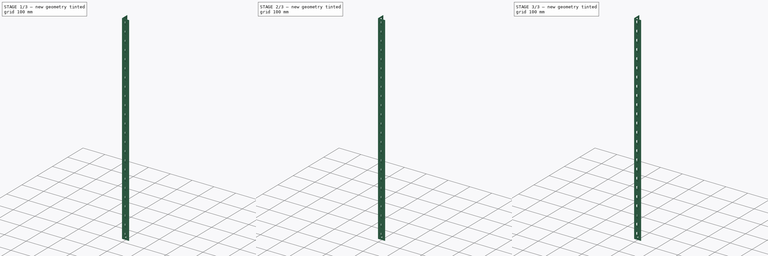
[diagram: build sequence overview — one tinted view per stage of 3, left to right]
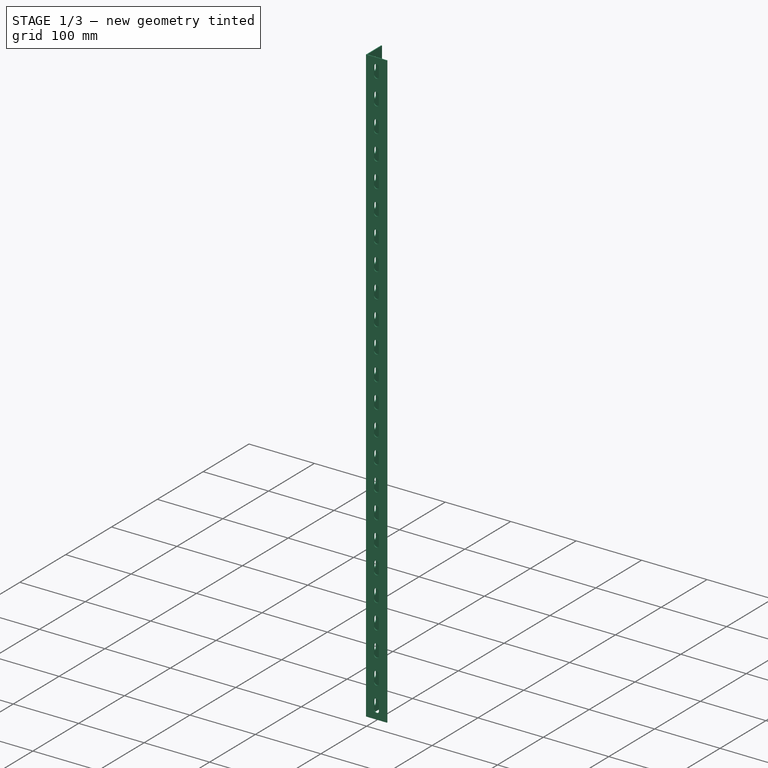
[diagram: stage 1 of 3 — iso view after this stage's code; geometry added in this stage tinted green]
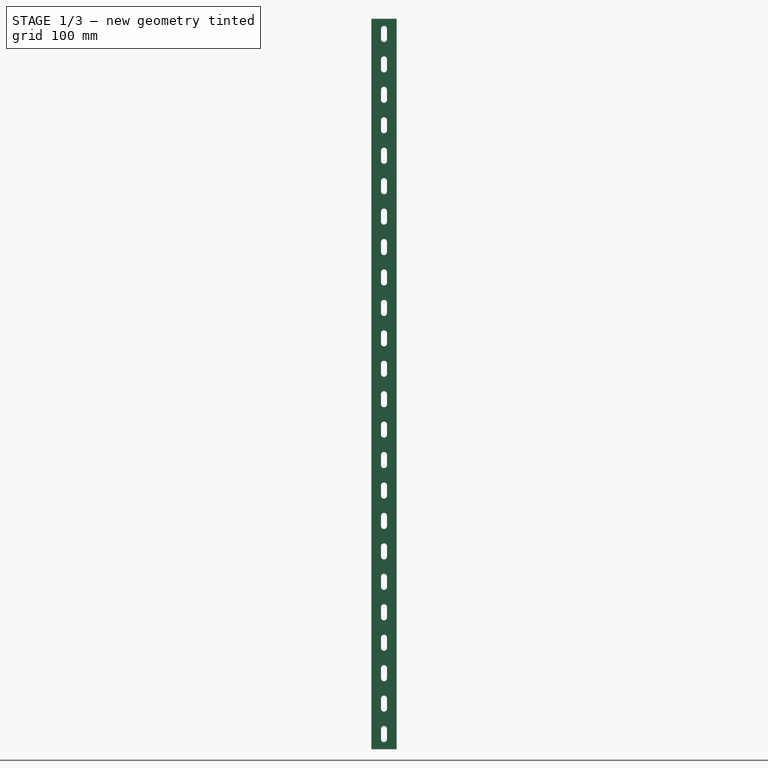
[diagram: stage 1 of 3 — front view after this stage's code; geometry added in this stage tinted green]
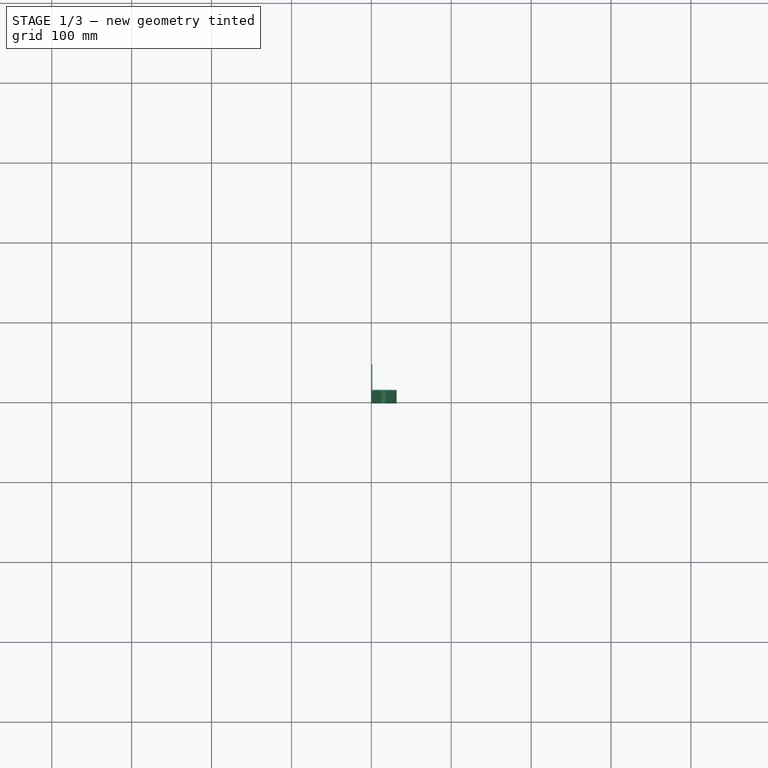
[diagram: stage 1 of 3 — top view after this stage's code; geometry added in this stage tinted green]
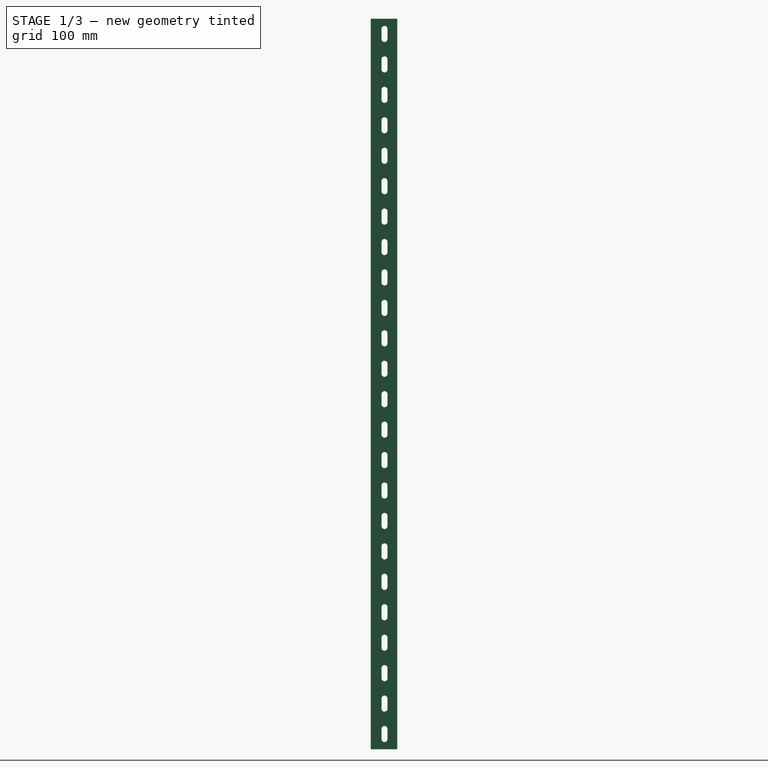
[diagram: stage 1 of 3 — right view after this stage's code; geometry added in this stage tinted green]
FCSTD DOCUMENT  (FreeCAD 0.17R11141 (Git))
Label: upright_support
License: All rights reserved
LicenseURL: http://en.wikipedia.org/wiki/All_rights_reserved
objects: Sketcher::SketchObject×3, PartDesign::Pocket×2, PartDesign::Pad×1, PartDesign::PolarPattern×1, PartDesign::Fillet×1, PartDesign::Body×1
note: 12 computed .brp shape members not serialized (recipe doc carries the construction recipe); baked Part::Feature solids carry a one-line shape summary decoded from their .brp

FEATURE [Sketcher::SketchObject] Sketch
  MapMode = 5
  Placement = pos=(0,0,0) rot=(0.57735,0.57735,0.57735;2.0944rad)
  Support = -> [YZ_Plane]
  sketch-geometry (126):
    g0: LineSegment StartX=0 StartY=0 StartZ=0 EndX=31.75 EndY=0 EndZ=0
    g1: LineSegment StartX=31.75 StartY=0 StartZ=0 EndX=31.75 EndY=914.4 EndZ=0
    g2: LineSegment StartX=31.75 StartY=914.4 StartZ=0 EndX=0 EndY=914.4 EndZ=0
    g3: LineSegment StartX=0 StartY=914.4 StartZ=0 EndX=0 EndY=0 EndZ=0
    g4: LineSegment [constr] StartX=15.875 StartY=0 StartZ=0 EndX=15.875 EndY=12.7 EndZ=0
    g5: LineSegment [constr] StartX=15.875 StartY=12.7 StartZ=0 EndX=15.875 EndY=50.8 EndZ=0
    g6: LineSegment [constr] StartX=15.875 StartY=50.8 StartZ=0 EndX=15.875 EndY=88.9 EndZ=0
    g7: LineSegment [constr] StartX=15.875 StartY=88.9 StartZ=0 EndX=15.875 EndY=127 EndZ=0
    g8: LineSegment [constr] StartX=15.875 StartY=127 StartZ=0 EndX=15.875 EndY=165.1 EndZ=0
    g9: LineSegment [constr] StartX=15.875 StartY=165.1 StartZ=0 EndX=15.875 EndY=203.2 EndZ=0
    g10: LineSegment [constr] StartX=15.875 StartY=203.2 StartZ=0 EndX=15.875 EndY=241.3 EndZ=0
    g11: LineSegment [constr] StartX=15.875 StartY=241.3 StartZ=0 EndX=15.875 EndY=279.4 EndZ=0
    g12: LineSegment [constr] StartX=15.875 StartY=279.4 StartZ=0 EndX=15.875 EndY=317.5 EndZ=0
    g13: LineSegment [constr] StartX=15.875 StartY=317.5 StartZ=0 EndX=15.875 EndY=355.6 EndZ=0
    g14: LineSegment [constr] StartX=15.875 StartY=355.6 StartZ=0 EndX=15.875 EndY=393.7 EndZ=0
    g15: LineSegment [constr] StartX=15.875 StartY=393.7 StartZ=0 EndX=15.875 EndY=431.8 EndZ=0
    g16: LineSegment [constr] StartX=15.875 StartY=431.8 StartZ=0 EndX=15.875 EndY=469.9 EndZ=0
    g17: LineSegment [constr] StartX=15.875 StartY=469.9 StartZ=0 EndX=15.875 EndY=508 EndZ=0
    g18: LineSegment [constr] StartX=15.875 StartY=508 StartZ=0 EndX=15.875 EndY=546.1 EndZ=0
    g19: LineSegment [constr] StartX=15.875 StartY=546.1 StartZ=0 EndX=15.875 EndY=584.2 EndZ=0
    g20: LineSegment [constr] StartX=15.875 StartY=584.2 StartZ=0 EndX=15.875 EndY=622.3 EndZ=0
    g21: LineSegment [constr] StartX=15.875 StartY=622.3 StartZ=0 EndX=15.875 EndY=660.4 EndZ=0
    g22: LineSegment [constr] StartX=15.875 StartY=660.4 StartZ=0 EndX=15.875 EndY=698.5 EndZ=0
    g23: LineSegment [constr] StartX=15.875 StartY=698.5 StartZ=0 EndX=15.875 EndY=736.6 EndZ=0
    g24: LineSegment [constr] StartX=15.875 StartY=736.6 StartZ=0 EndX=15.875 EndY=774.7 EndZ=0
    g25: LineSegment [constr] StartX=15.875 StartY=774.7 StartZ=0 EndX=15.875 EndY=812.8 EndZ=0
    g26: LineSegment [constr] StartX=15.875 StartY=812.8 StartZ=0 EndX=15.875 EndY=850.9 EndZ=0
    g27: LineSegment [constr] StartX=15.875 StartY=850.9 StartZ=0 EndX=15.875 EndY=889 EndZ=0
    g28: LineSegment [constr] StartX=0 StartY=0 StartZ=0 EndX=15.875 EndY=12.7 EndZ=0
    g29: LineSegment [constr] StartX=31.75 StartY=0 StartZ=0 EndX=15.875 EndY=12.7 EndZ=0
    g30: ArcOfCircle CenterX=15.875 CenterY=889 CenterZ=0 NormalX=0 NormalY=0 NormalZ=1 Radius=3.75 StartAngle=3.14159 EndAngle=6.28319
    g31: ArcOfCircle CenterX=15.875 CenterY=901.7 CenterZ=0 NormalX=0 NormalY=0 NormalZ=1 Radius=3.75 StartAngle=0 EndAngle=3.14159
    g32: LineSegment StartX=19.625 StartY=889 StartZ=0 EndX=19.625 EndY=901.7 EndZ=0
    g33: LineSegment StartX=12.125 StartY=889 StartZ=0 EndX=12.125 EndY=901.7 EndZ=0
    g34: ArcOfCircle CenterX=15.875 CenterY=850.9 CenterZ=0 NormalX=0 NormalY=0 NormalZ=1 Radius=3.75 StartAngle=3.14159 EndAngle=6.28319
    g35: ArcOfCircle CenterX=15.875 CenterY=863.6 CenterZ=0 NormalX=0 NormalY=0 NormalZ=1 Radius=3.75 StartAngle=0 EndAngle=3.14159
    g36: LineSegment StartX=19.625 StartY=850.9 StartZ=0 EndX=19.625 EndY=863.6 EndZ=0
    g37: LineSegment StartX=12.125 StartY=850.9 StartZ=0 EndX=12.125 EndY=863.6 EndZ=0
    g38: ArcOfCircle CenterX=15.875 CenterY=812.8 CenterZ=0 NormalX=0 NormalY=0 NormalZ=1 Radius=3.75 StartAngle=3.14159 EndAngle=6.28319
    g39: ArcOfCircle CenterX=15.875 CenterY=825.5 CenterZ=0 NormalX=0 NormalY=0 NormalZ=1 Radius=3.75 StartAngle=0 EndAngle=3.14159
    g40: LineSegment StartX=19.625 StartY=812.8 StartZ=0 EndX=19.625 EndY=825.5 EndZ=0
    g41: LineSegment StartX=12.125 StartY=812.8 StartZ=0 EndX=12.125 EndY=825.5 EndZ=0
    g42: ArcOfCircle CenterX=15.875 CenterY=774.7 CenterZ=0 NormalX=0 NormalY=0 NormalZ=1 Radius=3.75 StartAngle=3.14159 EndAngle=6.28319
    g43: ArcOfCircle CenterX=15.875 CenterY=787.4 CenterZ=0 NormalX=0 NormalY=0 NormalZ=1 Radius=3.75 StartAngle=0 EndAngle=3.14159
    g44: LineSegment StartX=19.625 StartY=774.7 StartZ=0 EndX=19.625 EndY=787.4 EndZ=0
    g45: LineSegment StartX=12.125 StartY=774.7 StartZ=0 EndX=12.125 EndY=787.4 EndZ=0
    g46: ArcOfCircle CenterX=15.875 CenterY=736.6 CenterZ=0 NormalX=0 NormalY=0 NormalZ=1 Radius=3.75 StartAngle=3.14159 EndAngle=6.28319
    g47: ArcOfCircle CenterX=15.875 CenterY=749.3 CenterZ=0 NormalX=0 NormalY=0 NormalZ=1 Radius=3.75 StartAngle=0 EndAngle=3.14159
    g48: LineSegment StartX=19.625 StartY=736.6 StartZ=0 EndX=19.625 EndY=749.3 EndZ=0
    g49: LineSegment StartX=12.125 StartY=736.6 StartZ=0 EndX=12.125 EndY=749.3 EndZ=0
    g50: ArcOfCircle CenterX=15.875 CenterY=698.5 CenterZ=0 NormalX=0 NormalY=0 NormalZ=1 Radius=3.75 StartAngle=3.14159 EndAngle=6.28319
    g51: ArcOfCircle CenterX=15.875 CenterY=711.2 CenterZ=0 NormalX=0 NormalY=0 NormalZ=1 Radius=3.75 StartAngle=0 EndAngle=3.14159
    g52: LineSegment StartX=19.625 StartY=698.5 StartZ=0 EndX=19.625 EndY=711.2 EndZ=0
    g53: LineSegment StartX=12.125 StartY=698.5 StartZ=0 EndX=12.125 EndY=711.2 EndZ=0
    g54: ArcOfCircle CenterX=15.875 CenterY=660.4 CenterZ=0 NormalX=0 NormalY=0 NormalZ=1 Radius=3.75 StartAngle=3.14159 EndAngle=6.28319
    g55: ArcOfCircle CenterX=15.875 CenterY=673.1 CenterZ=0 NormalX=0 NormalY=0 NormalZ=1 Radius=3.75 StartAngle=0 EndAngle=3.14159
    g56: LineSegment StartX=19.625 StartY=660.4 StartZ=0 EndX=19.625 EndY=673.1 EndZ=0
    g57: LineSegment StartX=12.125 StartY=660.4 StartZ=0 EndX=12.125 EndY=673.1 EndZ=0
    g58: ArcOfCircle CenterX=15.875 CenterY=622.3 CenterZ=0 NormalX=0 NormalY=0 NormalZ=1 Radius=3.75 StartAngle=3.14159 EndAngle=6.28319
    g59: ArcOfCircle CenterX=15.875 CenterY=635 CenterZ=0 NormalX=0 NormalY=0 NormalZ=1 Radius=3.75 StartAngle=0 EndAngle=3.14159
    g60: LineSegment StartX=19.625 StartY=622.3 StartZ=0 EndX=19.625 EndY=635 EndZ=0
    g61: LineSegment StartX=12.125 StartY=622.3 StartZ=0 EndX=12.125 EndY=635 EndZ=0
    g62: ArcOfCircle CenterX=15.875 CenterY=584.2 CenterZ=0 NormalX=0 NormalY=0 NormalZ=1 Radius=3.75 StartAngle=3.14159 EndAngle=6.28319
    g63: ArcOfCircle CenterX=15.875 CenterY=596.9 CenterZ=0 NormalX=0 NormalY=0 NormalZ=1 Radius=3.75 StartAngle=0 EndAngle=3.14159
    g64: LineSegment StartX=19.625 StartY=584.2 StartZ=0 EndX=19.625 EndY=596.9 EndZ=0
    g65: LineSegment StartX=12.125 StartY=584.2 StartZ=0 EndX=12.125 EndY=596.9 EndZ=0
    g66: ArcOfCircle CenterX=15.875 CenterY=546.1 CenterZ=0 NormalX=0 NormalY=0 NormalZ=1 Radius=3.75 StartAngle=3.14159 EndAngle=6.28319
    g67: ArcOfCircle CenterX=15.875 CenterY=558.8 CenterZ=0 NormalX=0 NormalY=0 NormalZ=1 Radius=3.75 StartAngle=0 EndAngle=3.14159
    g68: LineSegment StartX=19.625 StartY=546.1 StartZ=0 EndX=19.625 EndY=558.8 EndZ=0
    g69: LineSegment StartX=12.125 StartY=546.1 StartZ=0 EndX=12.125 EndY=558.8 EndZ=0
    g70: ArcOfCircle CenterX=15.875 CenterY=508 CenterZ=0 NormalX=0 NormalY=0 NormalZ=1 Radius=3.75 StartAngle=3.14159 EndAngle=6.28319
    g71: ArcOfCircle CenterX=15.875 CenterY=520.7 CenterZ=0 NormalX=0 NormalY=0 NormalZ=1 Radius=3.75 StartAngle=0 EndAngle=3.14159
    g72: LineSegment StartX=19.625 StartY=508 StartZ=0 EndX=19.625 EndY=520.7 EndZ=0
    g73: LineSegment StartX=12.125 StartY=508 StartZ=0 EndX=12.125 EndY=520.7 EndZ=0
    g74: ArcOfCircle CenterX=15.875 CenterY=469.9 CenterZ=0 NormalX=0 NormalY=0 NormalZ=1 Radius=3.75 StartAngle=3.14159 EndAngle=6.28319
    g75: ArcOfCircle CenterX=15.875 CenterY=482.6 CenterZ=0 NormalX=0 NormalY=0 NormalZ=1 Radius=3.75 StartAngle=0 EndAngle=3.14159
    g76: LineSegment StartX=19.625 StartY=469.9 StartZ=0 EndX=19.625 EndY=482.6 EndZ=0
    g77: LineSegment StartX=12.125 StartY=469.9 StartZ=0 EndX=12.125 EndY=482.6 EndZ=0
    g78: ArcOfCircle CenterX=15.875 CenterY=431.8 CenterZ=0 NormalX=0 NormalY=0 NormalZ=1 Radius=3.75 StartAngle=3.14159 EndAngle=6.28319
    g79: ArcOfCircle CenterX=15.875 CenterY=444.5 CenterZ=0 NormalX=0 NormalY=0 NormalZ=1 Radius=3.75 StartAngle=0 EndAngle=3.14159
    g80: LineSegment StartX=19.625 StartY=431.8 StartZ=0 EndX=19.625 EndY=444.5 EndZ=0
    g81: LineSegment StartX=12.125 StartY=431.8 StartZ=0 EndX=12.125 EndY=444.5 EndZ=0
    g82: ArcOfCircle CenterX=15.875 CenterY=393.7 CenterZ=0 NormalX=0 NormalY=0 NormalZ=1 Radius=3.75 StartAngle=3.14159 EndAngle=6.28319
    g83: ArcOfCircle CenterX=15.875 CenterY=406.4 CenterZ=0 NormalX=0 NormalY=0 NormalZ=1 Radius=3.75 StartAngle=0 EndAngle=3.14159
    g84: LineSegment StartX=19.625 StartY=393.7 StartZ=0 EndX=19.625 EndY=406.4 EndZ=0
    g85: LineSegment StartX=12.125 StartY=393.7 StartZ=0 EndX=12.125 EndY=406.4 EndZ=0
    g86: ArcOfCircle CenterX=15.875 CenterY=355.6 CenterZ=0 NormalX=0 NormalY=0 NormalZ=1 Radius=3.75 StartAngle=3.14159 EndAngle=6.28319
    g87: ArcOfCircle CenterX=15.875 CenterY=368.3 CenterZ=0 NormalX=0 NormalY=0 NormalZ=1 Radius=3.75 StartAngle=0 EndAngle=3.14159
    g88: LineSegment StartX=19.625 StartY=355.6 StartZ=0 EndX=19.625 EndY=368.3 EndZ=0
    g89: LineSegment StartX=12.125 StartY=355.6 StartZ=0 EndX=12.125 EndY=368.3 EndZ=0
    g90: ArcOfCircle CenterX=15.875 CenterY=317.5 CenterZ=0 NormalX=0 NormalY=0 NormalZ=1 Radius=3.75 StartAngle=3.14159 EndAngle=6.28319
    g91: ArcOfCircle CenterX=15.875 CenterY=330.2 CenterZ=0 NormalX=0 NormalY=0 NormalZ=1 Radius=3.75 StartAngle=0 EndAngle=3.14159
    g92: LineSegment StartX=19.625 StartY=317.5 StartZ=0 EndX=19.625 EndY=330.2 EndZ=0
    g93: LineSegment StartX=12.125 StartY=317.5 StartZ=0 EndX=12.125 EndY=330.2 EndZ=0
    g94: ArcOfCircle CenterX=15.875 CenterY=279.4 CenterZ=0 NormalX=0 NormalY=0 NormalZ=1 Radius=3.75 StartAngle=3.14159 EndAngle=6.28319
    g95: ArcOfCircle CenterX=15.875 CenterY=292.1 CenterZ=0 NormalX=0 NormalY=0 NormalZ=1 Radius=3.75 StartAngle=0 EndAngle=3.14159
    g96: LineSegment StartX=19.625 StartY=279.4 StartZ=0 EndX=19.625 EndY=292.1 EndZ=0
    g97: LineSegment StartX=12.125 StartY=279.4 StartZ=0 EndX=12.125 EndY=292.1 EndZ=0
    g98: ArcOfCircle CenterX=15.875 CenterY=241.3 CenterZ=0 NormalX=0 NormalY=0 NormalZ=1 Radius=3.75 StartAngle=3.14159 EndAngle=6.28319
    g99: ArcOfCircle CenterX=15.875 CenterY=254 CenterZ=0 NormalX=0 NormalY=0 NormalZ=1 Radius=3.75 StartAngle=0 EndAngle=3.14159
    g100: LineSegment StartX=19.625 StartY=241.3 StartZ=0 EndX=19.625 EndY=254 EndZ=0
    g101: LineSegment StartX=12.125 StartY=241.3 StartZ=0 EndX=12.125 EndY=254 EndZ=0
    g102: ArcOfCircle CenterX=15.875 CenterY=203.2 CenterZ=0 NormalX=0 NormalY=0 NormalZ=1 Radius=3.75 StartAngle=3.14159 EndAngle=6.28319
    g103: ArcOfCircle CenterX=15.875 CenterY=215.9 CenterZ=0 NormalX=0 NormalY=0 NormalZ=1 Radius=3.75 StartAngle=0 EndAngle=3.14159
    g104: LineSegment StartX=19.625 StartY=203.2 StartZ=0 EndX=19.625 EndY=215.9 EndZ=0
    g105: LineSegment StartX=12.125 StartY=203.2 StartZ=0 EndX=12.125 EndY=215.9 EndZ=0
    g106: ArcOfCircle CenterX=15.875 CenterY=165.1 CenterZ=0 NormalX=0 NormalY=0 NormalZ=1 Radius=3.75 StartAngle=3.14159 EndAngle=6.28319
    g107: ArcOfCircle CenterX=15.875 CenterY=177.8 CenterZ=0 NormalX=0 NormalY=0 NormalZ=1 Radius=3.75 StartAngle=0 EndAngle=3.14159
    g108: LineSegment StartX=19.625 StartY=165.1 StartZ=0 EndX=19.625 EndY=177.8 EndZ=0
    g109: LineSegment StartX=12.125 StartY=165.1 StartZ=0 EndX=12.125 EndY=177.8 EndZ=0
    g110: ArcOfCircle CenterX=15.875 CenterY=127 CenterZ=0 NormalX=0 NormalY=0 NormalZ=1 Radius=3.75 StartAngle=3.14159 EndAngle=6.28319
    g111: ArcOfCircle CenterX=15.875 CenterY=139.7 CenterZ=0 NormalX=0 NormalY=0 NormalZ=1 Radius=3.75 StartAngle=0 EndAngle=3.14159
    g112: LineSegment StartX=19.625 StartY=127 StartZ=0 EndX=19.625 EndY=139.7 EndZ=0
    g113: LineSegment StartX=12.125 StartY=127 StartZ=0 EndX=12.125 EndY=139.7 EndZ=0
    g114: ArcOfCircle CenterX=15.875 CenterY=88.9 CenterZ=0 NormalX=0 NormalY=0 NormalZ=1 Radius=3.75 StartAngle=3.14159 EndAngle=6.28319
    g115: ArcOfCircle CenterX=15.875 CenterY=101.6 CenterZ=0 NormalX=0 NormalY=0 NormalZ=1 Radius=3.75 StartAngle=0 EndAngle=3.14159
    g116: LineSegment StartX=19.625 StartY=88.9 StartZ=0 EndX=19.625 EndY=101.6 EndZ=0
    g117: LineSegment StartX=12.125 StartY=88.9 StartZ=0 EndX=12.125 EndY=101.6 EndZ=0
    g118: ArcOfCircle CenterX=15.875 CenterY=50.8 CenterZ=0 NormalX=0 NormalY=0 NormalZ=1 Radius=3.75 StartAngle=3.14159 EndAngle=6.28319
    g119: ArcOfCircle CenterX=15.875 CenterY=63.5 CenterZ=0 NormalX=0 NormalY=0 NormalZ=1 Radius=3.75 StartAngle=0 EndAngle=3.14159
    g120: LineSegment StartX=19.625 StartY=50.8 StartZ=0 EndX=19.625 EndY=63.5 EndZ=0
    g121: LineSegment StartX=12.125 StartY=50.8 StartZ=0 EndX=12.125 EndY=63.5 EndZ=0
    g122: ArcOfCircle CenterX=15.875 CenterY=12.7 CenterZ=0 NormalX=0 NormalY=0 NormalZ=1 Radius=3.75 StartAngle=3.14159 EndAngle=6.28319
    g123: ArcOfCircle CenterX=15.875 CenterY=25.4 CenterZ=0 NormalX=0 NormalY=0 NormalZ=1 Radius=3.75 StartAngle=0 EndAngle=3.14159
    g124: LineSegment StartX=19.625 StartY=12.7 StartZ=0 EndX=19.625 EndY=25.4 EndZ=0
    g125: LineSegment StartX=12.125 StartY=12.7 StartZ=0 EndX=12.125 EndY=25.4 EndZ=0
  constraints (304):
    c: Coincident(g0,g1)
    c: Coincident(g1,g2)
    c: Coincident(g2,g3)
    c: Coincident(g3,g0)
    c: Horizontal(g0)
    c: Horizontal(g2)
    c: Vertical(g1)
    c: Vertical(g3)
    c: Coincident(g0,g-1)
    c: DistanceY(g3,g3) = 914.4
    c: DistanceX(g0,g0) = 31.75
    c: PointOnObject(g4,g0)
    c: Vertical(g4)
    c: Coincident(g4,g5)
    c: Vertical(g5)
    c: Coincident(g5,g6)
    c: Vertical(g6)
    c: Coincident(g6,g7)
    c: Vertical(g7)
    c: Coincident(g7,g8)
    c: Vertical(g8)
    c: Coincident(g8,g9)
    c: Vertical(g9)
    c: Coincident(g9,g10)
    c: Vertical(g10)
    c: Coincident(g10,g11)
    c: Vertical(g11)
    c: Coincident(g11,g12)
    c: Vertical(g12)
    c: Coincident(g12,g13)
    c: Vertical(g13)
    c: Coincident(g13,g14)
    c: Vertical(g14)
    c: Coincident(g14,g15)
    c: Vertical(g15)
    c: Coincident(g15,g16)
    c: Vertical(g16)
    c: Coincident(g16,g17)
    c: Vertical(g17)
    c: Coincident(g17,g18)
    c: Vertical(g18)
    c: Coincident(g18,g19)
    c: Vertical(g19)
    c: Coincident(g19,g20)
    c: Vertical(g20)
    c: Coincident(g20,g21)
    c: Vertical(g21)
    c: Coincident(g21,g22)
    c: Vertical(g22)
    c: Equal(g5,g6)
    c: Equal(g6,g7)
    c: Equal(g7,g8)
    c: Equal(g8,g9)
    c: Equal(g9,g10)
    c: Equal(g10,g11)
    c: Equal(g11,g12)
    c: Equal(g12,g13)
    c: Equal(g13,g14)
    c: Equal(g14,g15)
    c: Equal(g15,g16)
    c: Equal(g16,g17)
    c: Equal(g17,g18)
    c: Equal(g18,g19)
    c: Equal(g19,g20)
    c: Equal(g20,g21)
    c: Equal(g21,g22)
    c: DistanceY(g22,g22) = 38.1
    c: Coincident(g22,g23)
    c: Vertical(g23)
    c: Coincident(g23,g24)
    c: Vertical(g24)
    c: Coincident(g24,g25)
    c: Vertical(g25)
    c: Coincident(g25,g26)
    c: Vertical(g26)
    c: Coincident(g26,g27)
    c: Vertical(g27)
    c: Equal(g22,g23)
    c: Equal(g23,g24)
    c: Equal(g24,g25)
    c: Equal(g25,g26)
    c: Equal(g26,g27)
    c: DistanceY(g27,g2) = 25.4
    c: Coincident(g28,g-1)
    c: Coincident(g28,g4)
    c: Coincident(g29,g0)
    c: Coincident(g29,g4)
    c: Equal(g28,g29)
    c: Tangent(g30,g33) = 1.5708
    c: Tangent(g30,g32) = -1.5708
    c: Tangent(g32,g31) = -1.5708
    c: Tangent(g33,g31) = 1.5708
    c: Vertical(g32)
    c: Equal(g30,g31)
    c: Coincident(g30,g27)
    c: Tangent(g34,g37) = 1.5708
    c: Tangent(g34,g36) = -1.5708
    c: Tangent(g36,g35) = -1.5708
    c: Tangent(g37,g35) = 1.5708
    c: Vertical(g36)
    c: Equal(g34,g35)
    c: Coincident(g34,g26)
    c: Tangent(g38,g41) = 1.5708
    c: Tangent(g38,g40) = -1.5708
    c: Tangent(g40,g39) = -1.5708
    c: Tangent(g41,g39) = 1.5708
    c: Vertical(g40)
    c: Equal(g38,g39)
    c: Coincident(g38,g25)
    c: Tangent(g42,g45) = 1.5708
    c: Tangent(g42,g44) = -1.5708
    c: Tangent(g44,g43) = -1.5708
    c: Tangent(g45,g43) = 1.5708
    c: Vertical(g44)
    c: Equal(g42,g43)
    c: Coincident(g42,g24)
    c: Tangent(g46,g49) = 1.5708
    c: Tangent(g46,g48) = -1.5708
    c: Tangent(g48,g47) = -1.5708
    c: Tangent(g49,g47) = 1.5708
    c: Vertical(g48)
    c: Equal(g46,g47)
    c: Coincident(g46,g23)
    c: Tangent(g50,g53) = 1.5708
    c: Tangent(g50,g52) = -1.5708
    c: Tangent(g52,g51) = -1.5708
    c: Tangent(g53,g51) = 1.5708
    c: Vertical(g52)
    c: Equal(g50,g51)
    c: Coincident(g50,g22)
    c: Tangent(g54,g57) = 1.5708
    c: Tangent(g54,g56) = -1.5708
    c: Tangent(g56,g55) = -1.5708
    c: Tangent(g57,g55) = 1.5708
    c: Vertical(g56)
    c: Equal(g54,g55)
    c: Coincident(g54,g21)
    c: Tangent(g58,g61) = 1.5708
    c: Tangent(g58,g60) = -1.5708
    c: Tangent(g60,g59) = -1.5708
    c: Tangent(g61,g59) = 1.5708
    c: Vertical(g60)
    c: Equal(g58,g59)
    c: Coincident(g58,g20)
    c: Tangent(g62,g65) = 1.5708
    c: Tangent(g62,g64) = -1.5708
    c: Tangent(g64,g63) = -1.5708
    c: Tangent(g65,g63) = 1.5708
    c: Vertical(g64)
    c: Equal(g62,g63)
    c: Coincident(g62,g19)
    c: Tangent(g66,g69) = 1.5708
    c: Tangent(g66,g68) = -1.5708
    c: Tangent(g68,g67) = -1.5708
    c: Tangent(g69,g67) = 1.5708
    c: Vertical(g68)
    c: Equal(g66,g67)
    c: Coincident(g66,g18)
    c: Tangent(g70,g73) = 1.5708
    c: Tangent(g70,g72) = -1.5708
    c: Tangent(g72,g71) = -1.5708
    c: Tangent(g73,g71) = 1.5708
    c: Vertical(g72)
    c: Equal(g70,g71)
    c: Coincident(g70,g17)
    c: Tangent(g74,g77) = 1.5708
    c: Tangent(g74,g76) = -1.5708
    c: Tangent(g76,g75) = -1.5708
    c: Tangent(g77,g75) = 1.5708
    c: Vertical(g76)
    c: Equal(g74,g75)
    c: Coincident(g74,g16)
    c: Tangent(g78,g81) = 1.5708
    c: Tangent(g78,g80) = -1.5708
    c: Tangent(g80,g79) = -1.5708
    c: Tangent(g81,g79) = 1.5708
    c: Vertical(g80)
    c: Equal(g78,g79)
    c: Coincident(g78,g15)
    c: Tangent(g82,g85) = 1.5708
    c: Tangent(g82,g84) = -1.5708
    c: Tangent(g84,g83) = -1.5708
    c: Tangent(g85,g83) = 1.5708
    c: Vertical(g84)
    c: Equal(g82,g83)
    c: Coincident(g82,g14)
    c: Tangent(g86,g89) = 1.5708
    c: Tangent(g86,g88) = -1.5708
    c: Tangent(g88,g87) = -1.5708
    c: Tangent(g89,g87) = 1.5708
    c: Vertical(g88)
    c: Equal(g86,g87)
    c: Coincident(g86,g13)
    c: Tangent(g90,g93) = 1.5708
    c: Tangent(g90,g92) = -1.5708
    c: Tangent(g92,g91) = -1.5708
    c: Tangent(g93,g91) = 1.5708
    c: Vertical(g92)
    c: Equal(g90,g91)
    c: Coincident(g90,g12)
    c: Tangent(g94,g97) = 1.5708
    c: Tangent(g94,g96) = -1.5708
    c: Tangent(g96,g95) = -1.5708
    c: Tangent(g97,g95) = 1.5708
    c: Vertical(g96)
    c: Equal(g94,g95)
    c: Coincident(g94,g11)
    c: Tangent(g98,g101) = 1.5708
    c: Tangent(g98,g100) = -1.5708
    c: Tangent(g100,g99) = -1.5708
    c: Tangent(g101,g99) = 1.5708
    c: Vertical(g100)
    c: Equal(g98,g99)
    c: Coincident(g98,g10)
    c: Tangent(g102,g105) = 1.5708
    c: Tangent(g102,g104) = -1.5708
    c: Tangent(g104,g103) = -1.5708
    c: Tangent(g105,g103) = 1.5708
    c: Vertical(g104)
    c: Equal(g102,g103)
    c: Coincident(g102,g9)
    c: Tangent(g106,g109) = 1.5708
    c: Tangent(g106,g108) = -1.5708
    c: Tangent(g108,g107) = -1.5708
    c: Tangent(g109,g107) = 1.5708
    c: Vertical(g108)
    c: Equal(g106,g107)
    c: Coincident(g106,g8)
    c: Tangent(g110,g113) = 1.5708
    c: Tangent(g110,g112) = -1.5708
    c: Tangent(g112,g111) = -1.5708
    c: Tangent(g113,g111) = 1.5708
    c: Vertical(g112)
    c: Equal(g110,g111)
    c: Coincident(g110,g7)
    c: Tangent(g114,g117) = 1.5708
    c: Tangent(g114,g116) = -1.5708
    c: Tangent(g116,g115) = -1.5708
    c: Tangent(g117,g115) = 1.5708
    c: Vertical(g116)
    c: Equal(g114,g115)
    c: Coincident(g114,g6)
    c: Tangent(g118,g121) = 1.5708
    c: Tangent(g118,g120) = -1.5708
    c: Tangent(g120,g119) = -1.5708
    c: Tangent(g121,g119) = 1.5708
    c: Vertical(g120)
    c: Equal(g118,g119)
    c: Coincident(g118,g5)
    c: Tangent(g122,g125) = 1.5708
    c: Tangent(g122,g124) = -1.5708
    c: Tangent(g124,g123) = -1.5708
    c: Tangent(g125,g123) = 1.5708
    c: Vertical(g124)
    c: Equal(g122,g123)
    c: Coincident(g122,g4)
    c: Equal(g30,g34)
    c: Equal(g34,g38)
    c: Equal(g38,g42)
    c: Equal(g42,g46)
    c: Equal(g46,g50)
    c: Equal(g50,g54)
    c: Equal(g54,g58)
    c: Equal(g58,g62)
    c: Equal(g62,g66)
    c: Equal(g66,g70)
    c: Equal(g70,g74)
    c: Equal(g74,g78)
    c: Equal(g78,g82)
    c: Equal(g82,g86)
    c: Equal(g86,g90)
    c: Equal(g90,g94)
    c: Equal(g94,g98)
    c: Equal(g98,g102)
    c: Equal(g102,g106)
    c: Equal(g106,g110)
    c: Equal(g110,g114)
    c: Equal(g114,g118)
    c: Equal(g118,g122)
    c: Radius(g122) = 3.75
    c: Equal(g124,g120)
    c: Equal(g120,g116)
    c: Equal(g116,g112)
    c: Equal(g112,g108)
    c: Equal(g108,g104)
    c: Equal(g104,g100)
    c: Equal(g100,g96)
    c: Equal(g96,g92)
    c: Equal(g92,g88)
    c: Equal(g88,g84)
    c: Equal(g84,g80)
    c: Equal(g80,g76)
    c: Equal(g76,g72)
    c: Equal(g72,g68)
    c: Equal(g68,g64)
    c: Equal(g64,g60)
    c: Equal(g60,g56)
    c: Equal(g56,g52)
    c: Equal(g52,g48)
    c: Equal(g48,g44)
    c: Equal(g44,g40)
    c: Equal(g40,g36)
    c: Equal(g36,g32)
    c: DistanceY(g32,g32) = 12.7
FEATURE [PartDesign::Pad] Pad
  Length = 1.27
  Length2 = 100
  Placement = pos=(0,0,0) rot=(0.57735,0.57735,0.57735;2.0944rad)
  Profile = -> Sketch
  Type = 0
FEATURE [PartDesign::PolarPattern] PolarPattern
  Angle = 89.99
  Axis = -> Z_Axis
  BaseFeature = -> Pad
  Occurrences = 2
  Originals = -> [Pad]
  Placement = pos=(0,0,0) rot=(0.57735,0.57735,0.57735;2.0944rad)
  Reversed = true
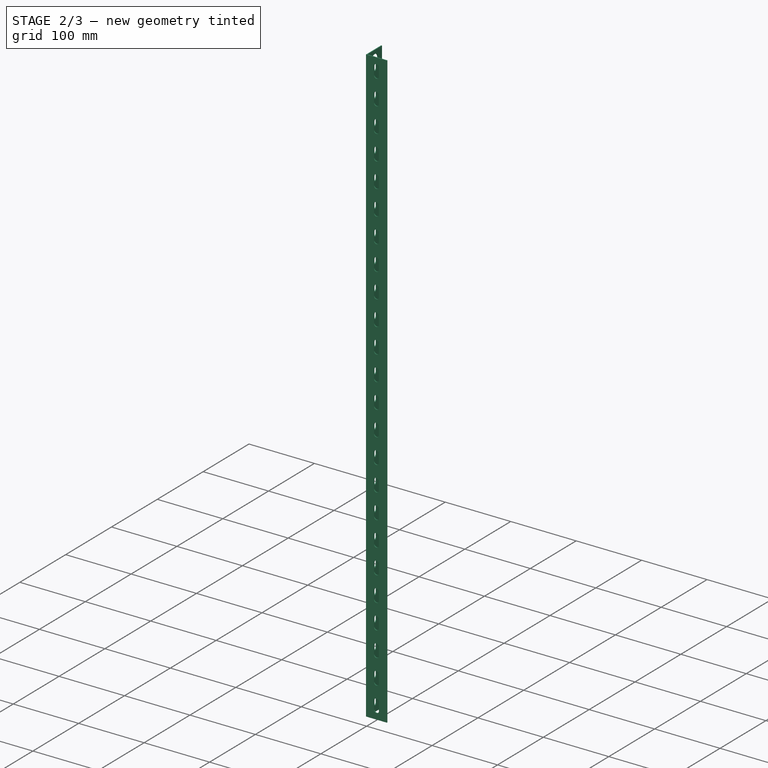
[diagram: stage 2 of 3 — iso view after this stage's code; geometry added in this stage tinted green]
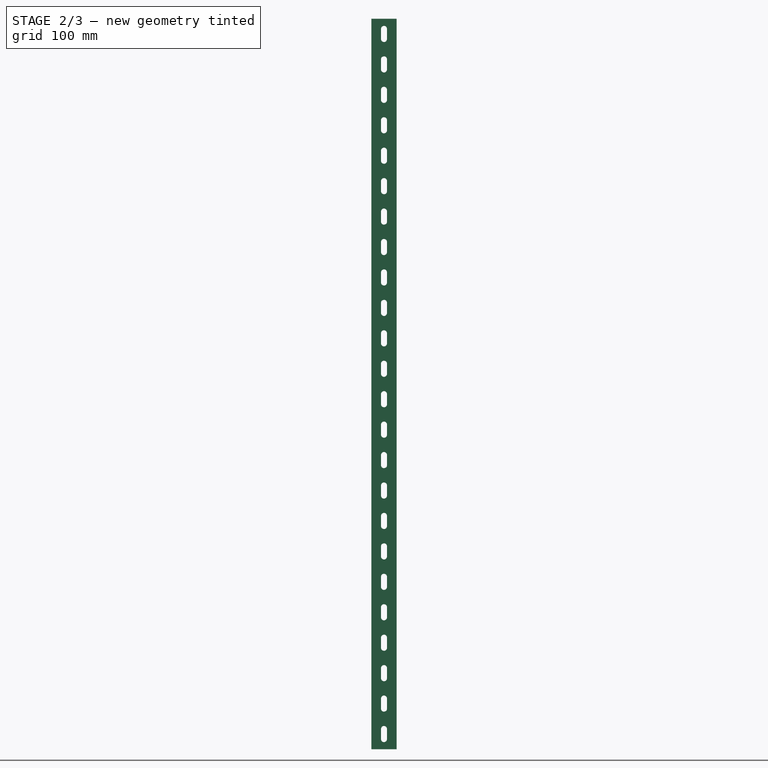
[diagram: stage 2 of 3 — front view after this stage's code; geometry added in this stage tinted green]
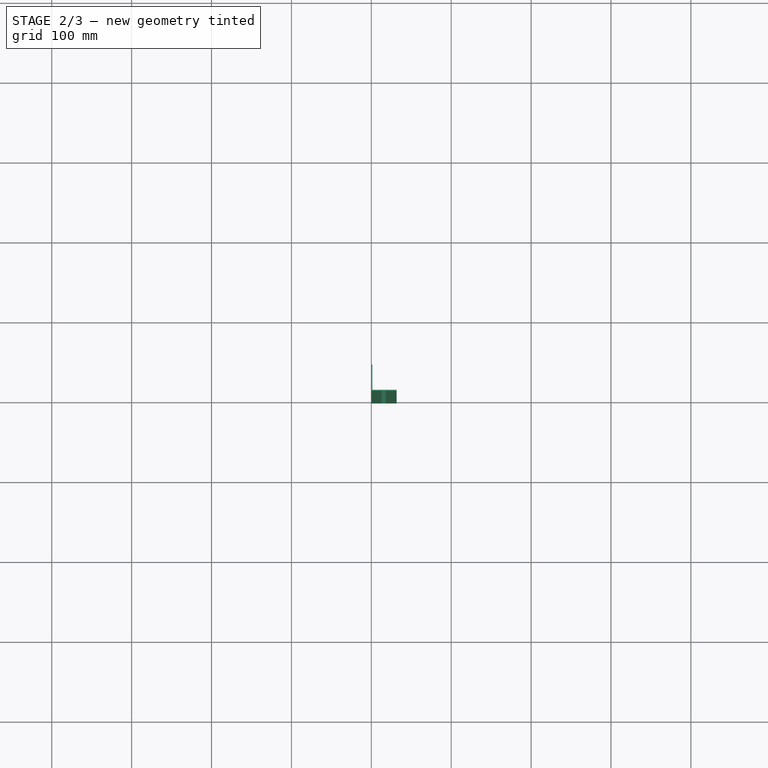
[diagram: stage 2 of 3 — top view after this stage's code; geometry added in this stage tinted green]
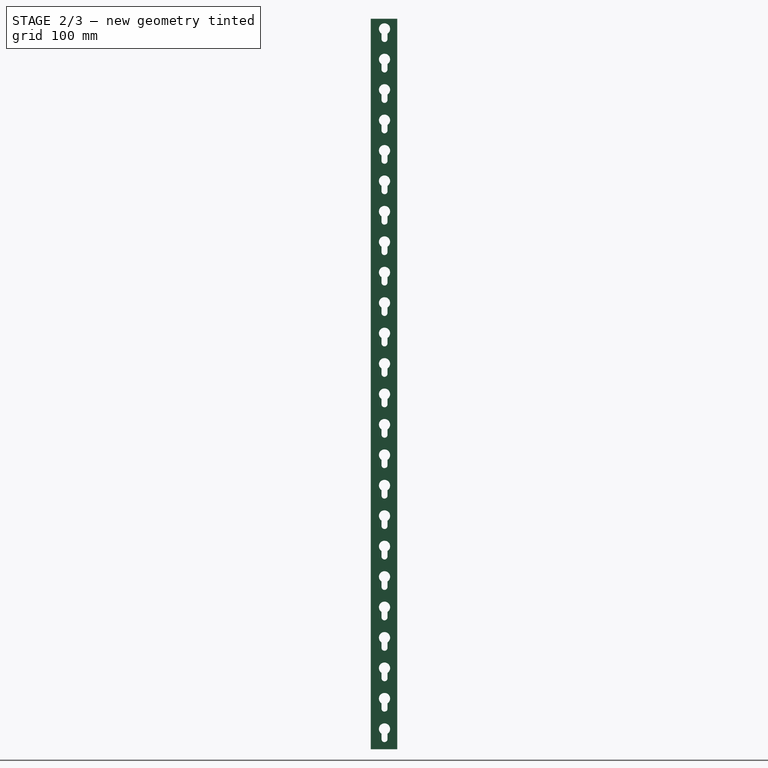
[diagram: stage 2 of 3 — right view after this stage's code; geometry added in this stage tinted green]
FEATURE [Sketcher::SketchObject] Sketch001
  ExternalGeometry = -> [PolarPattern]
  MapMode = 5
  Placement = pos=(0,0,0) rot=(0.57735,0.57735,-0.57735;4.18879rad)
  Support = -> [PolarPattern]
  sketch-geometry (24):
    g0: Circle CenterX=15.875 CenterY=-901.7 CenterZ=0 NormalX=0 NormalY=0 NormalZ=1 Radius=7
    g1: Circle CenterX=15.875 CenterY=-863.6 CenterZ=0 NormalX=0 NormalY=0 NormalZ=1 Radius=7
    g2: Circle CenterX=15.875 CenterY=-825.5 CenterZ=0 NormalX=0 NormalY=0 NormalZ=1 Radius=7
    g3: Circle CenterX=15.875 CenterY=-787.4 CenterZ=0 NormalX=0 NormalY=0 NormalZ=1 Radius=7
    g4: Circle CenterX=15.875 CenterY=-749.3 CenterZ=0 NormalX=0 NormalY=0 NormalZ=1 Radius=7
    g5: Circle CenterX=15.875 CenterY=-711.2 CenterZ=0 NormalX=0 NormalY=0 NormalZ=1 Radius=7
    g6: Circle CenterX=15.875 CenterY=-673.1 CenterZ=0 NormalX=0 NormalY=0 NormalZ=1 Radius=7
    g7: Circle CenterX=15.875 CenterY=-635 CenterZ=0 NormalX=0 NormalY=0 NormalZ=1 Radius=7
    g8: Circle CenterX=15.875 CenterY=-596.9 CenterZ=0 NormalX=0 NormalY=0 NormalZ=1 Radius=7
    g9: Circle CenterX=15.875 CenterY=-558.8 CenterZ=0 NormalX=0 NormalY=0 NormalZ=1 Radius=7
    g10: Circle CenterX=15.875 CenterY=-520.7 CenterZ=0 NormalX=0 NormalY=0 NormalZ=1 Radius=7
    g11: Circle CenterX=15.875 CenterY=-482.6 CenterZ=0 NormalX=0 NormalY=0 NormalZ=1 Radius=7
    g12: Circle CenterX=15.875 CenterY=-444.5 CenterZ=0 NormalX=0 NormalY=0 NormalZ=1 Radius=7
    g13: Circle CenterX=15.875 CenterY=-406.4 CenterZ=0 NormalX=0 NormalY=0 NormalZ=1 Radius=7
    g14: Circle CenterX=15.875 CenterY=-368.3 CenterZ=0 NormalX=0 NormalY=0 NormalZ=1 Radius=7
    g15: Circle CenterX=15.875 CenterY=-330.2 CenterZ=0 NormalX=0 NormalY=0 NormalZ=1 Radius=7
    g16: Circle CenterX=15.875 CenterY=-292.1 CenterZ=0 NormalX=0 NormalY=0 NormalZ=1 Radius=7
    g17: Circle CenterX=15.875 CenterY=-254 CenterZ=0 NormalX=0 NormalY=0 NormalZ=1 Radius=7
    g18: Circle CenterX=15.875 CenterY=-215.9 CenterZ=0 NormalX=0 NormalY=0 NormalZ=1 Radius=7
    g19: Circle CenterX=15.875 CenterY=-177.8 CenterZ=0 NormalX=0 NormalY=0 NormalZ=1 Radius=7
    g20: Circle CenterX=15.875 CenterY=-139.7 CenterZ=0 NormalX=0 NormalY=0 NormalZ=1 Radius=7
    g21: Circle CenterX=15.875 CenterY=-101.6 CenterZ=0 NormalX=0 NormalY=0 NormalZ=1 Radius=7
    g22: Circle CenterX=15.875 CenterY=-63.5 CenterZ=0 NormalX=0 NormalY=0 NormalZ=1 Radius=7
    g23: Circle CenterX=15.875 CenterY=-25.4 CenterZ=0 NormalX=0 NormalY=0 NormalZ=1 Radius=7
  constraints (48):
    c: Coincident(g0,g-26)
    c: Coincident(g1,g-25)
    c: Coincident(g2,g-24)
    c: Coincident(g3,g-23)
    c: Coincident(g4,g-22)
    c: Coincident(g5,g-21)
    c: Coincident(g6,g-20)
    c: Coincident(g7,g-3)
    c: Coincident(g8,g-19)
    c: Coincident(g9,g-18)
    c: Coincident(g10,g-17)
    c: Coincident(g11,g-16)
    c: Coincident(g12,g-15)
    c: Coincident(g13,g-14)
    c: Coincident(g14,g-13)
    c: Coincident(g15,g-12)
    c: Coincident(g16,g-11)
    c: Coincident(g17,g-10)
    c: Coincident(g18,g-9)
    c: Coincident(g19,g-8)
    c: Coincident(g20,g-7)
    c: Coincident(g21,g-6)
    c: Coincident(g22,g-5)
    c: Coincident(g23,g-4)
    c: Equal(g23,g22)
    c: Equal(g22,g21)
    c: Equal(g21,g20)
    c: Equal(g20,g19)
    c: Equal(g19,g18)
    c: Equal(g18,g17)
    c: Equal(g17,g15)
    c: Equal(g15,g16)
    c: Equal(g16,g14)
    c: Equal(g14,g13)
    c: Equal(g13,g12)
    c: Equal(g12,g11)
    c: Equal(g11,g10)
    c: Equal(g10,g9)
    c: Equal(g9,g8)
    c: Equal(g8,g7)
    c: Equal(g7,g5)
    c: Equal(g5,g6)
    c: Equal(g6,g4)
    c: Equal(g4,g3)
    c: Equal(g3,g2)
    c: Equal(g2,g1)
    c: Equal(g1,g0)
    c: Radius(g23) = 7
FEATURE [PartDesign::Pocket] Pocket
  BaseFeature = -> PolarPattern
  Length = 5
  Placement = pos=(0,0,0) rot=(0.57735,0.57735,0.57735;2.0944rad)
  Profile = -> Sketch001
  Type = 0
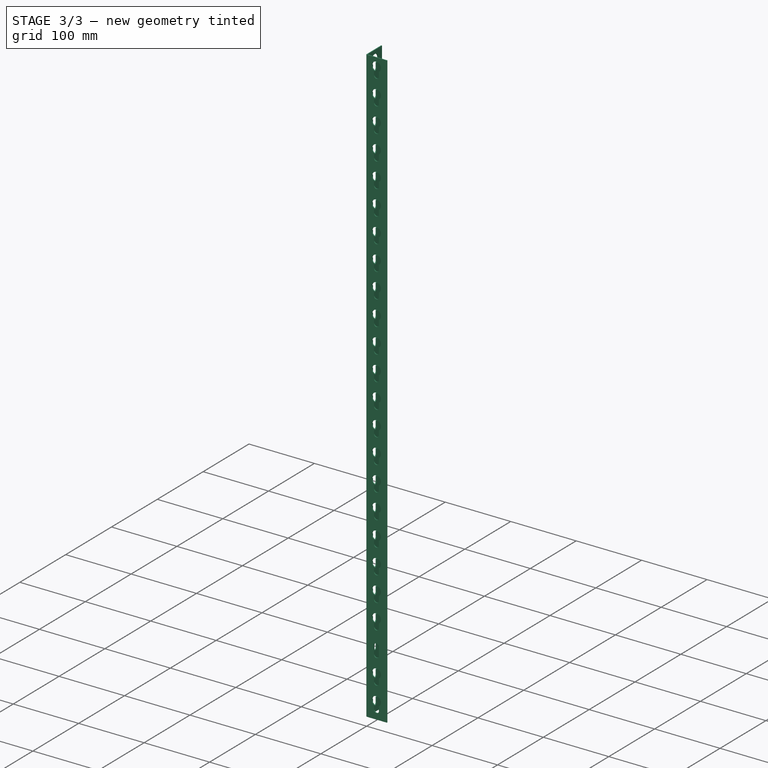
[diagram: stage 3 of 3 — iso view after this stage's code; geometry added in this stage tinted green]
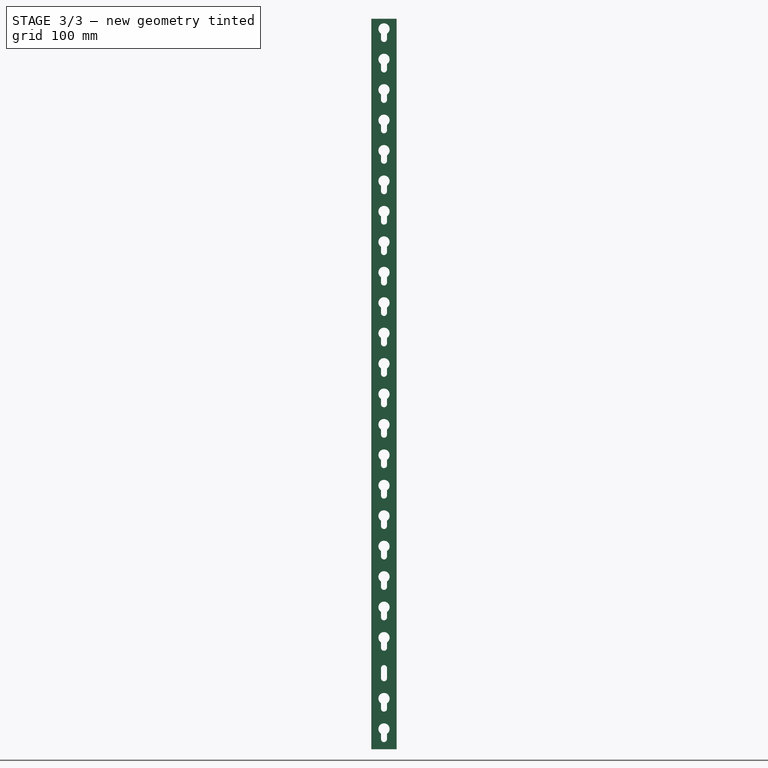
[diagram: stage 3 of 3 — front view after this stage's code; geometry added in this stage tinted green]
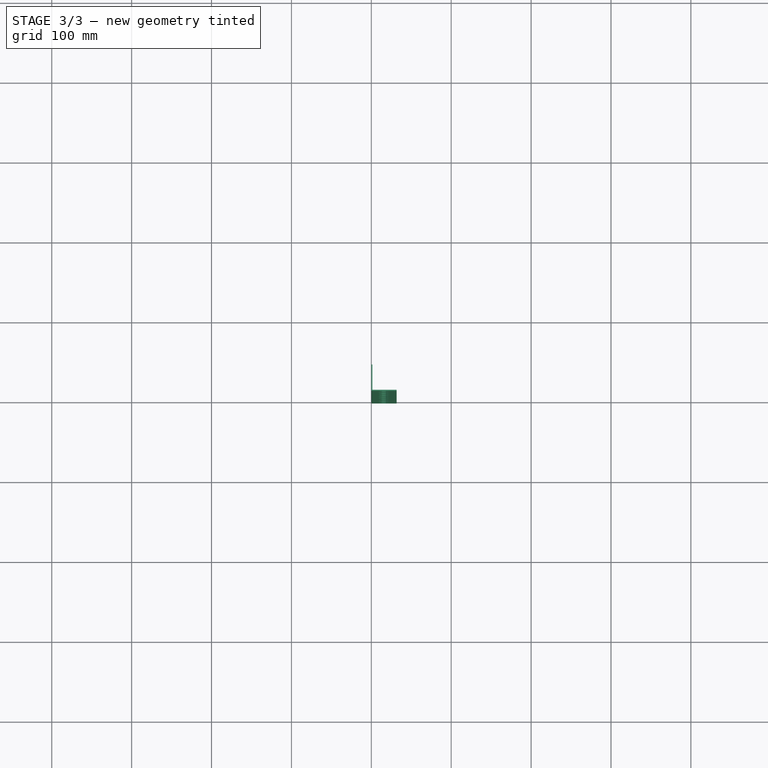
[diagram: stage 3 of 3 — top view after this stage's code; geometry added in this stage tinted green]
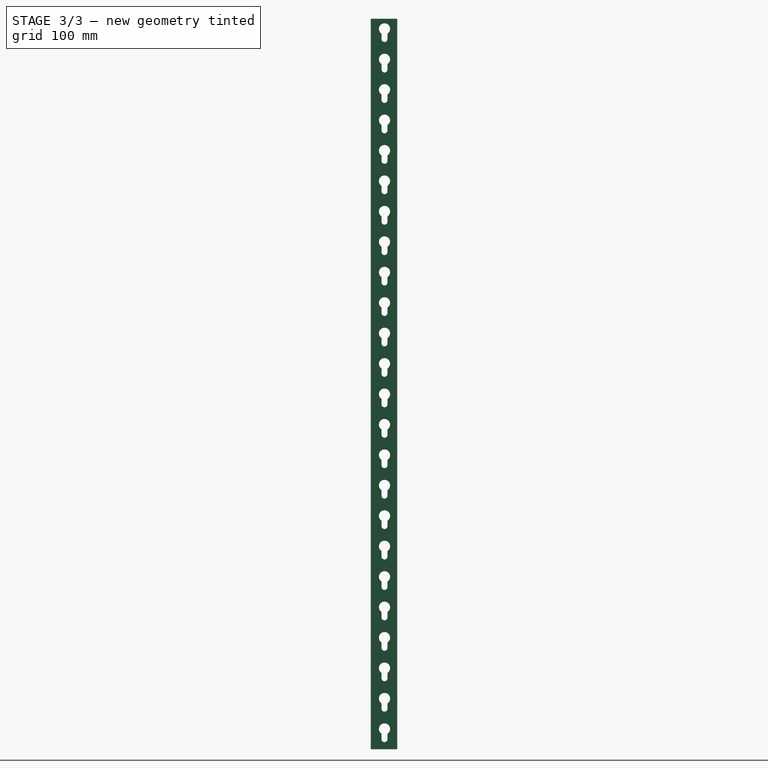
[diagram: stage 3 of 3 — right view after this stage's code; geometry added in this stage tinted green]
FEATURE [Sketcher::SketchObject] Sketch002
  ExternalGeometry = -> [Pocket]
  MapMode = 5
  Placement = pos=(0.000221657,-1.27,0) rot=(0.577317,0.577417,-0.577317;2.09429rad)
  Support = -> [Pocket]
  sketch-geometry (25):
    g0: Circle CenterX=-25.4 CenterY=15.875 CenterZ=0 NormalX=0 NormalY=0 NormalZ=1 Radius=7
    g1: Circle CenterX=-63.5 CenterY=15.875 CenterZ=0 NormalX=0 NormalY=0 NormalZ=1 Radius=7
    g2: Circle CenterX=-101.6 CenterY=15.875 CenterZ=0 NormalX=0 NormalY=0 NormalZ=1 Radius=0
    g3: Circle CenterX=-101.6 CenterY=15.875 CenterZ=0 NormalX=0 NormalY=0 NormalZ=1 Radius=7
    g4: Circle CenterX=-139.7 CenterY=15.875 CenterZ=0 NormalX=0 NormalY=0 NormalZ=1 Radius=7
    g5: Circle CenterX=-177.8 CenterY=15.875 CenterZ=0 NormalX=0 NormalY=0 NormalZ=1 Radius=7
    g6: Circle CenterX=-215.9 CenterY=15.875 CenterZ=0 NormalX=0 NormalY=0 NormalZ=1 Radius=7
    g7: Circle CenterX=-254 CenterY=15.875 CenterZ=0 NormalX=0 NormalY=0 NormalZ=1 Radius=7
    g8: Circle CenterX=-292.1 CenterY=15.875 CenterZ=0 NormalX=0 NormalY=0 NormalZ=1 Radius=7
    g9: Circle CenterX=-330.2 CenterY=15.875 CenterZ=0 NormalX=0 NormalY=0 NormalZ=1 Radius=7
    g10: Circle CenterX=-368.3 CenterY=15.875 CenterZ=0 NormalX=0 NormalY=0 NormalZ=1 Radius=7
    g11: Circle CenterX=-406.4 CenterY=15.875 CenterZ=0 NormalX=0 NormalY=0 NormalZ=1 Radius=7
    g12: Circle CenterX=-444.5 CenterY=15.875 CenterZ=0 NormalX=0 NormalY=0 NormalZ=1 Radius=7
    g13: Circle CenterX=-482.6 CenterY=15.875 CenterZ=0 NormalX=0 NormalY=0 NormalZ=1 Radius=7
    g14: Circle CenterX=-520.7 CenterY=15.875 CenterZ=0 NormalX=0 NormalY=0 NormalZ=1 Radius=7
    g15: Circle CenterX=-558.8 CenterY=15.875 CenterZ=0 NormalX=0 NormalY=0 NormalZ=1 Radius=7
    g16: Circle CenterX=-596.9 CenterY=15.875 CenterZ=0 NormalX=0 NormalY=0 NormalZ=1 Radius=7
    g17: Circle CenterX=-635 CenterY=15.875 CenterZ=0 NormalX=0 NormalY=0 NormalZ=1 Radius=7
    g18: Circle CenterX=-673.1 CenterY=15.875 CenterZ=0 NormalX=0 NormalY=0 NormalZ=1 Radius=7
    g19: Circle CenterX=-711.2 CenterY=15.875 CenterZ=0 NormalX=0 NormalY=0 NormalZ=1 Radius=7
    g20: Circle CenterX=-749.3 CenterY=15.875 CenterZ=0 NormalX=0 NormalY=0 NormalZ=1 Radius=7
    g21: Circle CenterX=-787.4 CenterY=15.875 CenterZ=0 NormalX=0 NormalY=0 NormalZ=1 Radius=7
    g22: Circle CenterX=-825.5 CenterY=15.875 CenterZ=0 NormalX=0 NormalY=0 NormalZ=1 Radius=7
    g23: Circle CenterX=-863.6 CenterY=15.875 CenterZ=0 NormalX=0 NormalY=0 NormalZ=1 Radius=7
    g24: Circle CenterX=-901.7 CenterY=15.875 CenterZ=0 NormalX=0 NormalY=0 NormalZ=1 Radius=7
  constraints (49):
    c: Coincident(g0,g-26)
    c: Coincident(g1,g-25)
    c: Coincident(g2,g-24)
    c: Coincident(g3,g2)
    c: Coincident(g4,g-23)
    c: Coincident(g5,g-22)
    c: Coincident(g6,g-21)
    c: Coincident(g7,g-20)
    c: Coincident(g8,g-19)
    c: Coincident(g9,g-18)
    c: Coincident(g10,g-17)
    c: Coincident(g11,g-16)
    c: Coincident(g12,g-15)
    c: Coincident(g13,g-14)
    c: Coincident(g14,g-13)
    c: Coincident(g15,g-12)
    c: Coincident(g16,g-11)
    c: Coincident(g17,g-10)
    c: Coincident(g18,g-9)
    c: Coincident(g19,g-8)
    c: Coincident(g20,g-7)
    c: Coincident(g21,g-6)
    c: Coincident(g22,g-5)
    c: Coincident(g23,g-4)
    c: Coincident(g24,g-3)
    c: Equal(g24,g23)
    c: Equal(g23,g22)
    c: Equal(g22,g20)
    c: Equal(g20,g21)
    c: Equal(g21,g19)
    c: Equal(g19,g18)
    c: Equal(g18,g17)
    c: Equal(g17,g16)
    c: Equal(g16,g15)
    c: Equal(g15,g14)
    c: Equal(g14,g13)
    c: Equal(g13,g12)
    c: Equal(g12,g11)
    c: Equal(g11,g10)
    c: Equal(g10,g9)
    c: Equal(g9,g8)
    c: Equal(g8,g7)
    c: Equal(g7,g6)
    c: Equal(g6,g5)
    c: Equal(g5,g4)
    c: Equal(g4,g3)
    c: Equal(g3,g1)
    c: Equal(g1,g0)
    c: Radius(g0) = 7
FEATURE [PartDesign::Pocket] Pocket001
  BaseFeature = -> Pocket
  Length = 5
  Placement = pos=(0,0,0) rot=(0.57735,0.57735,0.57735;2.0944rad)
  Profile = -> Sketch002
  Type = 0
FEATURE [PartDesign::Fillet] Fillet
  Base = -> Pocket001 [Edge258]
  BaseFeature = -> Pocket001
  Placement = pos=(0,0,0) rot=(0.57735,0.57735,0.57735;2.0944rad)
  Radius = 1
FEATURE [PartDesign::Body] Body
  Group = -> [Sketch,Pad,PolarPattern,Sketch001,Pocket,Sketch002,Pocket001,Fillet]
  Origin = -> BodyOrigin
  Tip = -> Fillet
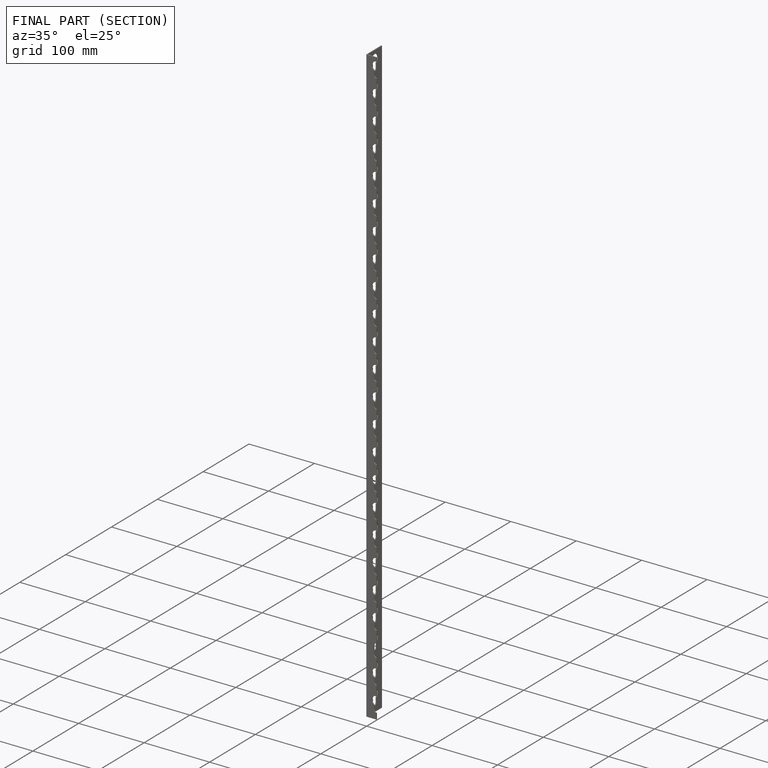
[diagram: finished part — half-section view (interior)]
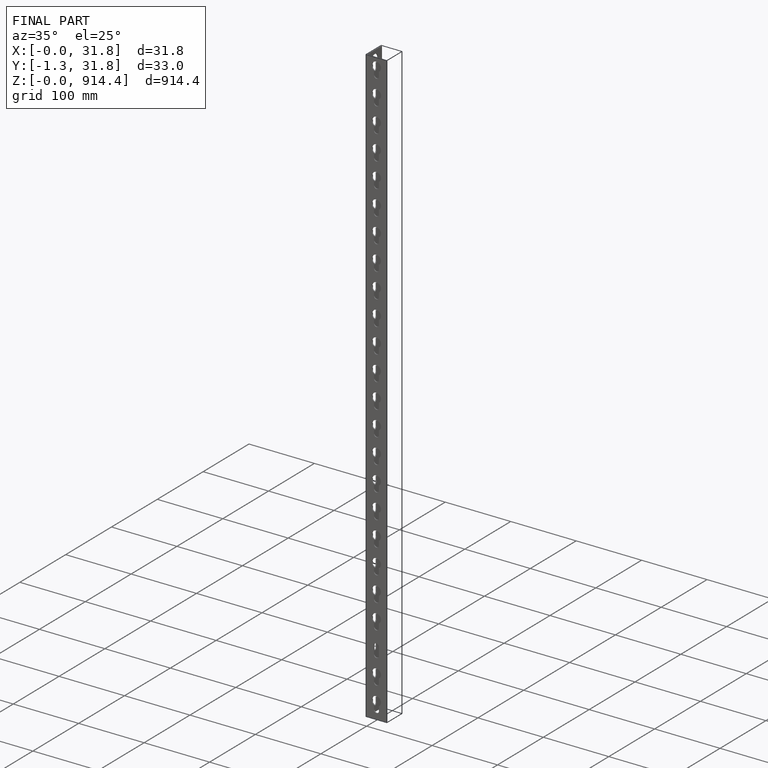
[diagram: finished part — iso view with bounding-box wireframe]
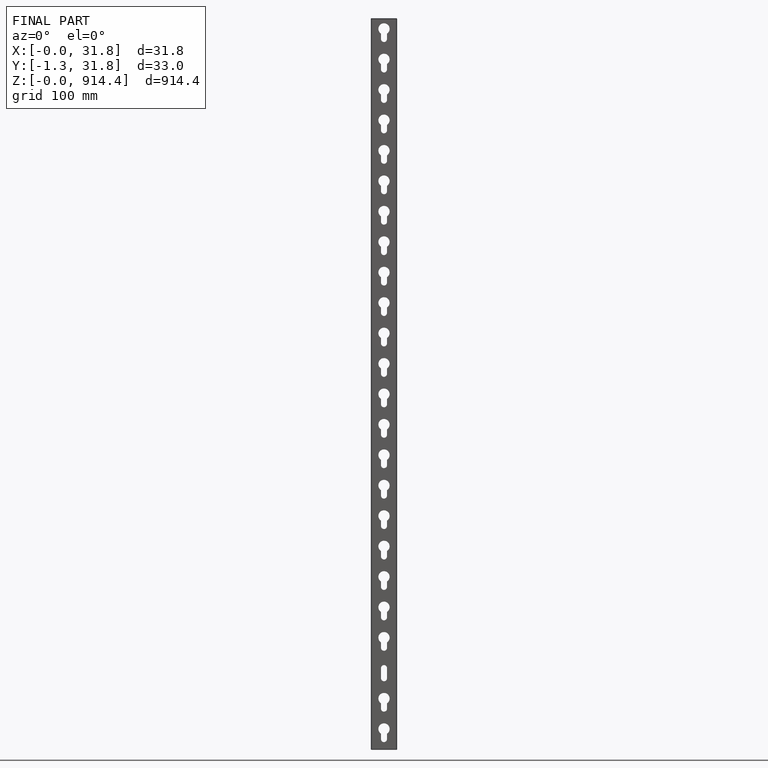
[diagram: finished part — front view with bounding-box wireframe]
